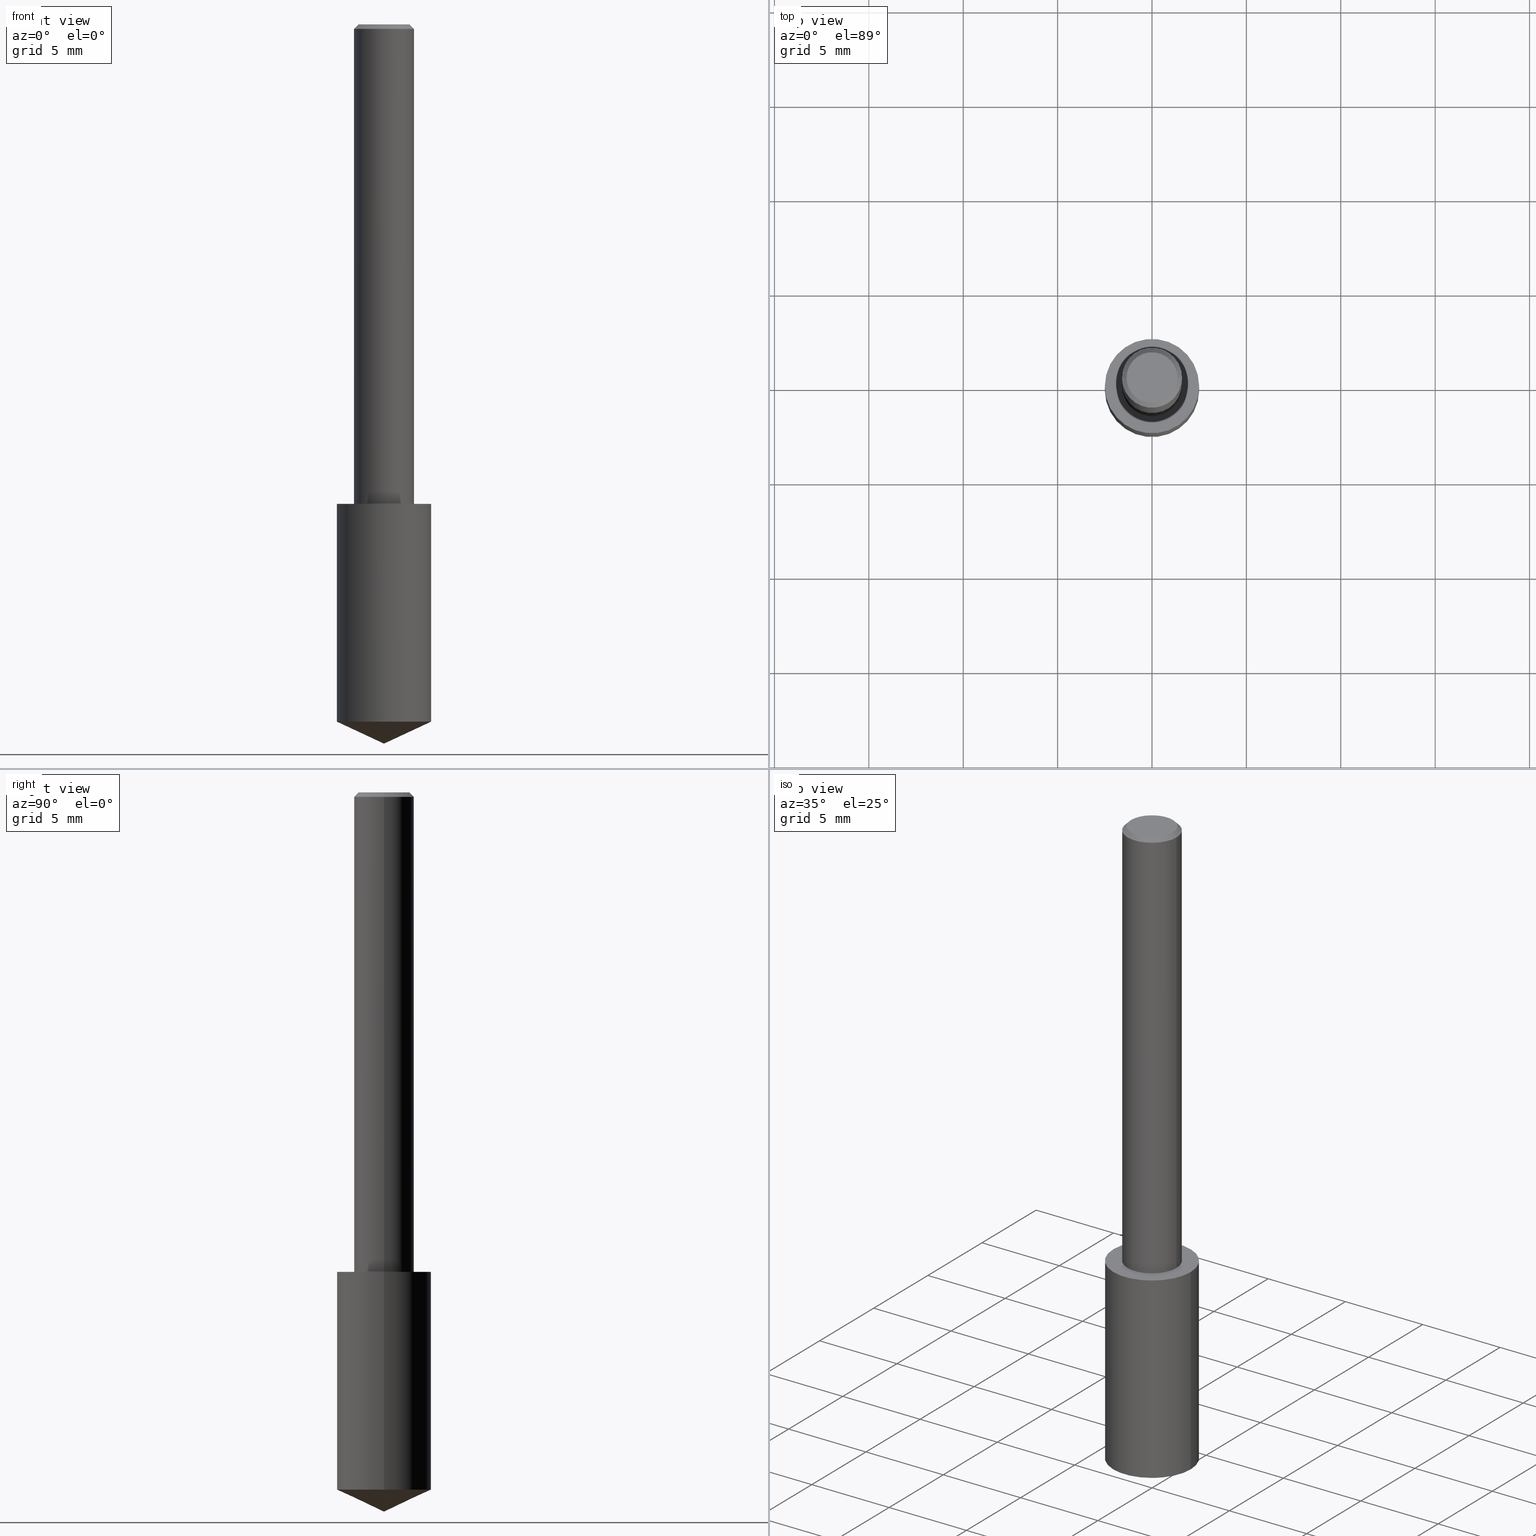
[diagram: canonical four-view strip — front | top / right | iso, engineering-drawing reading convention]
A machine part, canonical four-view strip (front | top / right | iso — engineering-drawing reading convention). The complete STEP part file that produces these views, byte-faithful:
ISO-10303-21;
HEADER;
FILE_DESCRIPTION (( 'STEP AP203' ),
    '1' );
FILE_NAME ('06131.STEP',
    '2024-04-30T18:30:26',
    ( '' ),
    ( '' ),
    'SwSTEP 2.0',
    'SolidWorks 2023',
    '' );
FILE_SCHEMA (( 'CONFIG_CONTROL_DESIGN' ));
ENDSEC;

DATA;
#1 = MANIFOLD_SOLID_BREP ( 'Body-Move/Copy2[2]', #149 ) ;
#2 = ORIENTED_EDGE ( 'NONE', *, *, #160, .F. ) ;
#3 = ORIENTED_EDGE ( 'NONE', *, *, #267, .T. ) ;
#4 = AXIS2_PLACEMENT_3D ( 'NONE', #236, #35, #294 ) ;
#5 = CIRCLE ( 'NONE', #189, 0.05312499999999999861 ) ;
#6 = EDGE_CURVE ( 'NONE', #192, #285, #201, .T. ) ;
#7 = CARTESIAN_POINT ( 'NONE',  ( 3.668203209277704895E-29, -5.237222008264718177E-15, -1.500000000000000222 ) ) ;
#8 = CC_DESIGN_DATE_AND_TIME_ASSIGNMENT ( #37, #214, ( #42 ) ) ;
#9 = LINE ( 'NONE', #208, #48 ) ;
#10 = ORIENTED_EDGE ( 'NONE', *, *, #122, .T. ) ;
#11 = CARTESIAN_POINT ( 'NONE',  ( 0.09840000000000000135, -5.764140054266837223E-15, -1.454115326437548150 ) ) ;
#12 = EDGE_CURVE ( 'NONE', #334, #317, #76, .T. ) ;
#13 = AXIS2_PLACEMENT_3D ( 'NONE', #83, #185, #165 ) ;
#14 = AXIS2_PLACEMENT_3D ( 'NONE', #24, #262, #131 ) ;
#15 = ORIENTED_EDGE ( 'NONE', *, *, #292, .F. ) ;
#16 = ADVANCED_BREP_SHAPE_REPRESENTATION ( '06131', ( #223, #1, #210 ), #184 ) ;
#17 = CARTESIAN_POINT ( 'NONE',  ( -9.261009624683002666E-28, 1.322226732217803884E-13, 37.87007874015748143 ) ) ;
#18 = FACE_OUTER_BOUND ( 'NONE', #167, .T. ) ;
#19 = ORIENTED_EDGE ( 'NONE', *, *, #104, .T. ) ;
#20 = CIRCLE ( 'NONE', #239, 0.06250000000000012490 ) ;
#21 = CONICAL_SURFACE ( 'NONE', #276, 84.42940631927388040, 1.134464013796313786 ) ;
#22 = ORIENTED_EDGE ( 'NONE', *, *, #297, .F. ) ;
#23 = DIMENSIONAL_EXPONENTS ( 1.000000000000000000, 0.000000000000000000, 0.000000000000000000, 0.000000000000000000, 0.000000000000000000, 0.000000000000000000, 0.000000000000000000 ) ;
#24 = CARTESIAN_POINT ( 'NONE',  ( 2.445468806185137438E-29, -3.491481338843146371E-15, -1.000000000000000222 ) ) ;
#25 = ORIENTED_EDGE ( 'NONE', *, *, #12, .T. ) ;
#26 = PLANE ( 'NONE',  #274 ) ;
#27 = LOCAL_TIME ( 14, 30, 26.00000000000000000, #114 ) ;
#28 = EDGE_CURVE ( 'NONE', #251, #31, #121, .T. ) ;
#29 = CIRCLE ( 'NONE', #229, 0.05312499999999999861 ) ;
#30 = CIRCLE ( 'NONE', #206, 0.06250000000000000000 ) ;
#31 = VERTEX_POINT ( 'NONE', #107 ) ;
#32 = CARTESIAN_POINT ( 'NONE',  ( 0.05312499999999999861, -4.129888592719939842E-16, 3.061617000609493422E-21 ) ) ;
#33 = EDGE_CURVE ( 'NONE', #285, #334, #296, .T. ) ;
#34 = FACE_OUTER_BOUND ( 'NONE', #105, .T. ) ;
#35 = DIRECTION ( 'NONE',  ( -2.445468806185136597E-29, 3.491481338843145583E-15, 1.000000000000000000 ) ) ;
#36 = ORIENTED_EDGE ( 'NONE', *, *, #6, .F. ) ;
#37 = DATE_AND_TIME ( #245, #27 ) ;
#38 = EDGE_CURVE ( 'NONE', #220, #192, #266, .T. ) ;
#39 = FACE_OUTER_BOUND ( 'NONE', #146, .T. ) ;
#40 = UNCERTAINTY_MEASURE_WITH_UNIT (LENGTH_MEASURE( 1.000000000000000082E-05 ), #250, 'distance_accuracy_value', 'NONE');
#41 = PERSON_AND_ORGANIZATION ( #310, #196 ) ;
#42 = SECURITY_CLASSIFICATION ( '', '', #148 ) ;
#43 = CARTESIAN_POINT ( 'NONE',  ( 0.09840000000000000135, -4.178604866327475025E-15, -1.000000000000000222 ) ) ;
#44 = EDGE_LOOP ( 'NONE', ( #92, #336, #52 ) ) ;
#45 = EDGE_LOOP ( 'NONE', ( #300, #10, #278, #47 ) ) ;
#46 = APPROVAL_DATE_TIME ( #172, #157 ) ;
#47 = ORIENTED_EDGE ( 'NONE', *, *, #267, .F. ) ;
#48 = VECTOR ( 'NONE', #324, 39.37007874015748143 ) ;
#49 = ORIENTED_EDGE ( 'NONE', *, *, #28, .T. ) ;
#50 = FACE_OUTER_BOUND ( 'NONE', #203, .T. ) ;
#51 = DIRECTION ( 'NONE',  ( -0.9063077870366498257, 7.915267918739016209E-15, 0.4226182617406998299 ) ) ;
#52 = ORIENTED_EDGE ( 'NONE', *, *, #125, .F. ) ;
#53 = CARTESIAN_POINT ( 'NONE',  ( 0.000000000000000000, 0.000000000000000000, 0.000000000000000000 ) ) ;
#54 = AXIS2_PLACEMENT_3D ( 'NONE', #269, #85, #110 ) ;
#55 = CARTESIAN_POINT ( 'NONE',  ( 0.000000000000000000, 0.000000000000000000, 0.000000000000000000 ) ) ;
#56 = DIRECTION ( 'NONE',  ( -2.445468806185136597E-29, 3.491481338843145583E-15, 1.000000000000000000 ) ) ;
#57 = CARTESIAN_POINT ( 'NONE',  ( 3.668203209277704895E-29, -5.237222008264718177E-15, -1.500000000000000222 ) ) ;
#58 = FACE_OUTER_BOUND ( 'NONE', #77, .T. ) ;
#59 = DIRECTION ( 'NONE',  ( 0.000000000000000000, 0.000000000000000000, 1.000000000000000000 ) ) ;
#60 = EDGE_CURVE ( 'NONE', #123, #251, #86, .T. ) ;
#61 = CARTESIAN_POINT ( 'NONE',  ( 3.414797697489490159E-29, -2.103347195721061331E-15, -1.000000000000000222 ) ) ;
#62 = PERSON_AND_ORGANIZATION_ROLE ( 'design_owner' ) ;
#63 = DIRECTION ( 'NONE',  ( 1.000000000000000000, -6.982962677686266711E-15, 4.876176775795935793E-29 ) ) ;
#64 = PERSON_AND_ORGANIZATION ( #310, #196 ) ;
#65 = ADVANCED_FACE ( 'NONE', ( #134 ), #212, .F. ) ;
#66 =( LENGTH_UNIT ( ) NAMED_UNIT ( * ) SI_UNIT ( $, .METRE. ) );
#67 = CC_DESIGN_SECURITY_CLASSIFICATION ( #42, ( #263 ) ) ;
#68 = CALENDAR_DATE ( 2024, 30, 4 ) ;
#69 = CARTESIAN_POINT ( 'NONE',  ( 2.292627005798582375E-31, -3.273263755165473266E-17, -0.009375000000000069042 ) ) ;
#70 = PERSON_AND_ORGANIZATION_ROLE ( 'creator' ) ;
#71 = VECTOR ( 'NONE', #338, 39.37007874015748143 ) ;
#72 = DIRECTION ( 'NONE',  ( -1.000000000000000000, 6.982962677686265922E-15, -4.876176775795935793E-29 ) ) ;
#73 = ORIENTED_EDGE ( 'NONE', *, *, #33, .T. ) ;
#74 = PERSON_AND_ORGANIZATION ( #310, #196 ) ;
#75 = DIRECTION ( 'NONE',  ( -2.445468806185136597E-29, 3.491481338843145583E-15, 1.000000000000000000 ) ) ;
#76 = CIRCLE ( 'NONE', #54, 0.09840000000000000135 ) ;
#77 = EDGE_LOOP ( 'NONE', ( #253, #19, #36 ) ) ;
#78 = LOCAL_TIME ( 14, 30, 26.00000000000000000, #280 ) ;
#79 = DIRECTION ( 'NONE',  ( 1.000000000000000000, -6.982962677686266711E-15, 4.876176628004948512E-29 ) ) ;
#80 = DIRECTION ( 'NONE',  ( -0.7071067811865450192, 2.468850131082230634E-15, -0.7071067811865500152 ) ) ;
#81 = AXIS2_PLACEMENT_3D ( 'NONE', #309, #163, #264 ) ;
#82 = APPROVAL_PERSON_ORGANIZATION ( #117, #94, #91 ) ;
#83 = CARTESIAN_POINT ( 'NONE',  ( 2.445468806185137438E-29, -3.491481338843146371E-15, -1.000000000000000222 ) ) ;
#84 =( NAMED_UNIT ( * ) SI_UNIT ( $, .STERADIAN. ) SOLID_ANGLE_UNIT ( ) );
#85 = DIRECTION ( 'NONE',  ( -2.445468806185136597E-29, 3.491481338843145583E-15, 1.000000000000000000 ) ) ;
#86 = LINE ( 'NONE', #244, #187 ) ;
#87 = DIRECTION ( 'NONE',  ( -2.445468806185136877E-29, 3.491481338843145188E-15, 1.000000000000000000 ) ) ;
#88 = CONICAL_SURFACE ( 'NONE', #112, 84.42940631927388040, 1.134464013796313786 ) ;
#89 = CC_DESIGN_PERSON_AND_ORGANIZATION_ASSIGNMENT ( #41, #176, ( #42 ) ) ;
#90 = ORIENTED_EDGE ( 'NONE', *, *, #60, .F. ) ;
#91 = APPROVAL_ROLE ( '' ) ;
#92 = ORIENTED_EDGE ( 'NONE', *, *, #104, .F. ) ;
#93 = LENGTH_MEASURE_WITH_UNIT ( LENGTH_MEASURE( 0.02539999999999999897 ), #66 );
#94 = APPROVAL ( #299, 'UNSPECIFIED' ) ;
#95 = DIRECTION ( 'NONE',  ( 2.445468806185136597E-29, -3.491481338843145583E-15, -1.000000000000000000 ) ) ;
#96 = LOCAL_TIME ( 14, 30, 26.00000000000000000, #247 ) ;
#97 = APPROVAL_ROLE ( '' ) ;
#98 = APPLICATION_PROTOCOL_DEFINITION ( 'international standard', 'config_control_design', 1994, #164 ) ;
#99 = PERSON_AND_ORGANIZATION_ROLE ( 'creator' ) ;
#100 = CARTESIAN_POINT ( 'NONE',  ( -3.743544432386672853E-50, 5.344789307371238476E-36, 1.530808498934197599E-21 ) ) ;
#101 = APPROVAL_PERSON_ORGANIZATION ( #74, #270, #97 ) ;
#102 = DIRECTION ( 'NONE',  ( -2.438088387897960049E-29, 3.491481338843145188E-15, 1.000000000000000000 ) ) ;
#103 = EDGE_LOOP ( 'NONE', ( #260, #22 ) ) ;
#104 = EDGE_CURVE ( 'NONE', #220, #285, #108, .T. ) ;
#105 = EDGE_LOOP ( 'NONE', ( #242, #153 ) ) ;
#106 = CARTESIAN_POINT ( 'NONE',  ( -0.06250000000000006939, 4.440892098500631092E-16, -3.074334431409319267E-30 ) ) ;
#107 = CARTESIAN_POINT ( 'NONE',  ( -0.06250000000000000000, -1.318017778347336672E-15, -0.009375000000000069042 ) ) ;
#108 = LINE ( 'NONE', #7, #177 ) ;
#109 = EDGE_CURVE ( 'NONE', #116, #123, #29, .T. ) ;
#110 = DIRECTION ( 'NONE',  ( 1.000000000000000000, -6.982962677686266711E-15, 0.000000000000000000 ) ) ;
#111 = CARTESIAN_POINT ( 'NONE',  ( 3.668203209277704895E-29, -5.237222008264718177E-15, -1.500000000000000222 ) ) ;
#112 = AXIS2_PLACEMENT_3D ( 'NONE', #213, #136, #168 ) ;
#113 = EDGE_CURVE ( 'NONE', #151, #272, #261, .T. ) ;
#114 = COORDINATED_UNIVERSAL_TIME_OFFSET ( 5, 0, .BEHIND. ) ;
#115 = CC_DESIGN_PERSON_AND_ORGANIZATION_ASSIGNMENT ( #335, #308, ( #263 ) ) ;
#116 = VERTEX_POINT ( 'NONE', #183 ) ;
#117 = PERSON_AND_ORGANIZATION ( #310, #196 ) ;
#118 = DIRECTION ( 'NONE',  ( -1.000000000000000000, 6.982962677686266711E-15, 0.000000000000000000 ) ) ;
#119 = ORIENTED_EDGE ( 'NONE', *, *, #122, .F. ) ;
#120 = APPROVAL_STATUS ( 'not_yet_approved' ) ;
#121 = CIRCLE ( 'NONE', #282, 0.06250000000000000000 ) ;
#122 = EDGE_CURVE ( 'NONE', #272, #31, #180, .T. ) ;
#123 = VERTEX_POINT ( 'NONE', #32 ) ;
#124 = COORDINATED_UNIVERSAL_TIME_OFFSET ( 5, 0, .BEHIND. ) ;
#125 = EDGE_CURVE ( 'NONE', #285, #192, #339, .T. ) ;
#126 = LOCAL_TIME ( 14, 30, 26.00000000000000000, #173 ) ;
#127 = CARTESIAN_POINT ( 'NONE',  ( 2.445468806185137438E-29, -3.491481338843146371E-15, -1.000000000000000222 ) ) ;
#128 = DATE_AND_TIME ( #314, #78 ) ;
#129 = VECTOR ( 'NONE', #188, 39.37007874015748143 ) ;
#130 = VECTOR ( 'NONE', #332, 39.37007874015748143 ) ;
#131 = DIRECTION ( 'NONE',  ( 1.000000000000000000, -6.982962677686266711E-15, 0.000000000000000000 ) ) ;
#132 = CARTESIAN_POINT ( 'NONE',  ( 2.445468806185137438E-29, -3.491481338843146371E-15, -1.000000000000000222 ) ) ;
#133 = FACE_OUTER_BOUND ( 'NONE', #181, .T. ) ;
#134 = FACE_OUTER_BOUND ( 'NONE', #255, .T. ) ;
#135 = ORIENTED_EDGE ( 'NONE', *, *, #182, .F. ) ;
#136 = DIRECTION ( 'NONE',  ( -2.445468806185136597E-29, 3.491481338843145583E-15, 1.000000000000000000 ) ) ;
#137 = ORIENTED_EDGE ( 'NONE', *, *, #318, .T. ) ;
#138 = CARTESIAN_POINT ( 'NONE',  ( 0.000000000000000000, 0.000000000000000000, 0.000000000000000000 ) ) ;
#139 = SHAPE_DEFINITION_REPRESENTATION ( #204, #16 ) ;
#140 = CIRCLE ( 'NONE', #158, 0.09840000000000000135 ) ;
#141 = CC_DESIGN_PERSON_AND_ORGANIZATION_ASSIGNMENT ( #306, #70, ( #263 ) ) ;
#142 = ORIENTED_EDGE ( 'NONE', *, *, #60, .T. ) ;
#143 = CARTESIAN_POINT ( 'NONE',  ( 2.292627005798582375E-31, -3.273263755165473266E-17, -0.009375000000000069042 ) ) ;
#144 = ORIENTED_EDGE ( 'NONE', *, *, #33, .F. ) ;
#145 = DIRECTION ( 'NONE',  ( 1.000000000000000000, -6.982962677686266711E-15, 0.000000000000000000 ) ) ;
#146 = EDGE_LOOP ( 'NONE', ( #90, #216, #315, #211 ) ) ;
#147 = PRODUCT_DEFINITION ( 'UNKNOWN', '', #263, #248 ) ;
#148 = SECURITY_CLASSIFICATION_LEVEL ( 'unclassified' ) ;
#149 = CLOSED_SHELL ( 'NONE', ( #312, #330, #155, #232, #323, #227 ) ) ;
#150 = VECTOR ( 'NONE', #80, 39.37007874015748143 ) ;
#151 = VERTEX_POINT ( 'NONE', #228 ) ;
#152 = CC_DESIGN_PERSON_AND_ORGANIZATION_ASSIGNMENT ( #331, #99, ( #147 ) ) ;
#153 = ORIENTED_EDGE ( 'NONE', *, *, #182, .T. ) ;
#154 = DIRECTION ( 'NONE',  ( 1.000000000000000000, -6.982962677686266711E-15, 4.876176775795935793E-29 ) ) ;
#155 = ADVANCED_FACE ( 'NONE', ( #265 ), #26, .F. ) ;
#156 = PLANE ( 'NONE',  #230 ) ;
#157 = APPROVAL ( #120, 'UNSPECIFIED' ) ;
#158 = AXIS2_PLACEMENT_3D ( 'NONE', #174, #194, #145 ) ;
#159 = APPLICATION_CONTEXT ( 'configuration controlled 3d designs of mechanical parts and assemblies' ) ;
#160 = EDGE_CURVE ( 'NONE', #116, #31, #311, .T. ) ;
#161 = DIRECTION ( 'NONE',  ( 1.000000000000000000, -6.982962677686264344E-15, 0.000000000000000000 ) ) ;
#162 = APPROVAL_PERSON_ORGANIZATION ( #64, #157, #175 ) ;
#163 = DIRECTION ( 'NONE',  ( -2.445468806185136597E-29, 3.491481338843145583E-15, 1.000000000000000000 ) ) ;
#164 = APPLICATION_CONTEXT ( 'configuration controlled 3d designs of mechanical parts and assemblies' ) ;
#165 = DIRECTION ( 'NONE',  ( 1.000000000000000000, -6.982962677686266711E-15, 0.000000000000000000 ) ) ;
#166 = MECHANICAL_CONTEXT ( 'NONE', #164, 'mechanical' ) ;
#167 = EDGE_LOOP ( 'NONE', ( #135, #142, #49, #2 ) ) ;
#168 = DIRECTION ( 'NONE',  ( 1.000000000000000000, -6.982962677686265922E-15, 0.000000000000000000 ) ) ;
#169 = DIRECTION ( 'NONE',  ( 1.000000000000000000, -6.982962677686266711E-15, 0.000000000000000000 ) ) ;
#170 = CARTESIAN_POINT ( 'NONE',  ( -0.09840000000000000135, -3.585074880824888582E-15, -1.000000000000000222 ) ) ;
#171 = ORIENTED_EDGE ( 'NONE', *, *, #125, .T. ) ;
#172 = DATE_AND_TIME ( #68, #96 ) ;
#173 = COORDINATED_UNIVERSAL_TIME_OFFSET ( 5, 0, .BEHIND. ) ;
#174 = CARTESIAN_POINT ( 'NONE',  ( 2.445468806185136877E-29, -3.491481338843145977E-15, -1.000000000000000222 ) ) ;
#175 = APPROVAL_ROLE ( '' ) ;
#176 = PERSON_AND_ORGANIZATION_ROLE ( 'classification_officer' ) ;
#177 = VECTOR ( 'NONE', #51, 39.37007874015748143 ) ;
#178 = AXIS2_PLACEMENT_3D ( 'NONE', #53, #286, #154 ) ;
#179 = CYLINDRICAL_SURFACE ( 'NONE', #178, 0.06250000000000006939 ) ;
#180 = LINE ( 'NONE', #106, #71 ) ;
#181 = EDGE_LOOP ( 'NONE', ( #119, #291, #3, #15 ) ) ;
#182 = EDGE_CURVE ( 'NONE', #123, #116, #5, .T. ) ;
#183 = CARTESIAN_POINT ( 'NONE',  ( -0.05312499999999999861, 3.873362110279099094E-16, 3.061616995216862494E-21 ) ) ;
#184 =( GEOMETRIC_REPRESENTATION_CONTEXT ( 3 ) GLOBAL_UNCERTAINTY_ASSIGNED_CONTEXT ( ( #40 ) ) GLOBAL_UNIT_ASSIGNED_CONTEXT ( ( #250, #320, #84 ) ) REPRESENTATION_CONTEXT ( 'NONE', 'WORKASPACE' ) );
#185 = DIRECTION ( 'NONE',  ( -2.445468806185136597E-29, 3.491481338843145583E-15, 1.000000000000000000 ) ) ;
#186 = CARTESIAN_POINT ( 'NONE',  ( -0.09840000000000000135, -2.792307286855207483E-15, -1.000000000000000222 ) ) ;
#187 = VECTOR ( 'NONE', #319, 39.37007874015748143 ) ;
#188 = DIRECTION ( 'NONE',  ( 0.9063077870366498257, -4.853149677051377212E-15, 0.4226182617406998299 ) ) ;
#189 = AXIS2_PLACEMENT_3D ( 'NONE', #237, #290, #207 ) ;
#190 = APPROVAL_DATE_TIME ( #327, #94 ) ;
#191 = DIRECTION ( 'NONE',  ( -2.445468806185136597E-29, 3.491481338843145583E-15, 1.000000000000000000 ) ) ;
#192 = VERTEX_POINT ( 'NONE', #11 ) ;
#193 = DATE_TIME_ROLE ( 'creation_date' ) ;
#194 = DIRECTION ( 'NONE',  ( -2.445468806185136597E-29, 3.491481338843145583E-15, 1.000000000000000000 ) ) ;
#195 = ORIENTED_EDGE ( 'NONE', *, *, #318, .F. ) ;
#196 = ORGANIZATION ( 'UNSPECIFIED', 'UNSPECIFIED', '' ) ;
#197 = DIRECTION ( 'NONE',  ( -2.445468806185136597E-29, 3.491481338843145583E-15, 1.000000000000000000 ) ) ;
#198 = APPROVAL_DATE_TIME ( #128, #270 ) ;
#199 = DATE_AND_TIME ( #281, #289 ) ;
#200 = DIRECTION ( 'NONE',  ( 2.438088387897960049E-29, -3.491481338843145188E-15, -1.000000000000000000 ) ) ;
#201 = CIRCLE ( 'NONE', #4, 0.09840000000000000135 ) ;
#202 = DIRECTION ( 'NONE',  ( 1.000000000000000000, -6.982962677686265922E-15, 4.876176775795935793E-29 ) ) ;
#203 = EDGE_LOOP ( 'NONE', ( #144, #171, #313, #304 ) ) ;
#204 = PRODUCT_DEFINITION_SHAPE ( 'NONE', 'NONE',  #147 ) ;
#205 = CC_DESIGN_APPROVAL ( #270, ( #263 ) ) ;
#206 = AXIS2_PLACEMENT_3D ( 'NONE', #307, #333, #169 ) ;
#207 = DIRECTION ( 'NONE',  ( 1.000000000000000000, -6.982962677686266711E-15, 4.876176628004948512E-29 ) ) ;
#208 = CARTESIAN_POINT ( 'NONE',  ( 0.06250000000000006939, -4.364351673553921624E-16, 3.047610484872463374E-30 ) ) ;
#209 = CARTESIAN_POINT ( 'NONE',  ( 2.292627005798582375E-31, -3.273263755165473266E-17, -0.009375000000000069042 ) ) ;
#210 = AXIS2_PLACEMENT_3D ( 'NONE', #55, #59, #243 ) ;
#211 = ORIENTED_EDGE ( 'NONE', *, *, #292, .T. ) ;
#212 = PLANE ( 'NONE',  #325 ) ;
#213 = CARTESIAN_POINT ( 'NONE',  ( -9.261009624683002666E-28, 1.322226732217803884E-13, 37.87007874015748143 ) ) ;
#214 = DATE_TIME_ROLE ( 'classification_date' ) ;
#215 = ORIENTED_EDGE ( 'NONE', *, *, #337, .F. ) ;
#216 = ORIENTED_EDGE ( 'NONE', *, *, #109, .F. ) ;
#217 = AXIS2_PLACEMENT_3D ( 'NONE', #127, #75, #161 ) ;
#218 = CALENDAR_DATE ( 2024, 30, 4 ) ;
#219 = DIRECTION ( 'NONE',  ( 2.445468806185136597E-29, -3.491481338843145583E-15, -1.000000000000000000 ) ) ;
#220 = VERTEX_POINT ( 'NONE', #111 ) ;
#221 = DIRECTION ( 'NONE',  ( -2.445468806185136597E-29, 3.491481338843145583E-15, 1.000000000000000000 ) ) ;
#222 = ADVANCED_FACE ( 'NONE', ( #287 ), #238, .T. ) ;
#223 = MANIFOLD_SOLID_BREP ( 'Body-Move/Copy2[1]', #226 ) ;
#224 = DIRECTION ( 'NONE',  ( 1.000000000000000000, -6.982962677686265922E-15, 0.000000000000000000 ) ) ;
#225 = PRODUCT_RELATED_PRODUCT_CATEGORY ( 'detail', '', ( #235 ) ) ;
#226 = CLOSED_SHELL ( 'NONE', ( #222, #273, #288, #241, #65 ) ) ;
#227 = ADVANCED_FACE ( 'NONE', ( #34 ), #156, .F. ) ;
#228 = CARTESIAN_POINT ( 'NONE',  ( 0.06250000000000012490, -3.927916506198539224E-15, -1.000000000000000222 ) ) ;
#229 = AXIS2_PLACEMENT_3D ( 'NONE', #321, #56, #79 ) ;
#230 = AXIS2_PLACEMENT_3D ( 'NONE', #100, #200, #295 ) ;
#231 = CARTESIAN_POINT ( 'NONE',  ( -0.06250000000000000000, 4.037025298037369491E-16, -0.009375000000000069042 ) ) ;
#232 = ADVANCED_FACE ( 'NONE', ( #133 ), #179, .T. ) ;
#233 = CC_DESIGN_DATE_AND_TIME_ASSIGNMENT ( #199, #193, ( #147 ) ) ;
#234 = CARTESIAN_POINT ( 'NONE',  ( 0.06250000000000000000, -4.691678049070464390E-16, -0.009375000000000069042 ) ) ;
#235 = PRODUCT ( '06131', '06131', '', ( #166 ) ) ;
#236 = CARTESIAN_POINT ( 'NONE',  ( 3.555993671398741299E-29, -5.077016526782508174E-15, -1.454115326437548150 ) ) ;
#237 = CARTESIAN_POINT ( 'NONE',  ( -7.487088864773345706E-50, 1.068957861474247695E-35, 3.061616997868395197E-21 ) ) ;
#238 = CYLINDRICAL_SURFACE ( 'NONE', #13, 0.09840000000000000135 ) ;
#239 = AXIS2_PLACEMENT_3D ( 'NONE', #271, #197, #302 ) ;
#240 = DIRECTION ( 'NONE',  ( 1.000000000000000000, -6.982962677686266711E-15, 0.000000000000000000 ) ) ;
#241 = ADVANCED_FACE ( 'NONE', ( #50 ), #258, .T. ) ;
#242 = ORIENTED_EDGE ( 'NONE', *, *, #109, .T. ) ;
#243 = DIRECTION ( 'NONE',  ( 1.000000000000000000, 0.000000000000000000, 0.000000000000000000 ) ) ;
#244 = CARTESIAN_POINT ( 'NONE',  ( 0.06250000000000000000, -4.615137624123754923E-16, -0.009375000000000069042 ) ) ;
#245 = CALENDAR_DATE ( 2024, 30, 4 ) ;
#246 = FACE_OUTER_BOUND ( 'NONE', #45, .T. ) ;
#247 = COORDINATED_UNIVERSAL_TIME_OFFSET ( 5, 0, .BEHIND. ) ;
#248 = DESIGN_CONTEXT ( 'detailed design', #159, 'design' ) ;
#249 = AXIS2_PLACEMENT_3D ( 'NONE', #143, #95, #329 ) ;
#250 =( CONVERSION_BASED_UNIT ( 'INCH', #93 ) LENGTH_UNIT ( ) NAMED_UNIT ( #23 ) );
#251 = VERTEX_POINT ( 'NONE', #234 ) ;
#252 = EDGE_LOOP ( 'NONE', ( #257, #73, #195, #215 ) ) ;
#253 = ORIENTED_EDGE ( 'NONE', *, *, #38, .F. ) ;
#254 = CONICAL_SURFACE ( 'NONE', #249, 0.06250000000000000000, 0.7853981633974447263 ) ;
#255 = EDGE_LOOP ( 'NONE', ( #137, #25 ) ) ;
#256 = CARTESIAN_POINT ( 'NONE',  ( -0.09840000000000000135, -4.377842474794570075E-15, -1.454115326437548150 ) ) ;
#257 = ORIENTED_EDGE ( 'NONE', *, *, #6, .T. ) ;
#258 = CYLINDRICAL_SURFACE ( 'NONE', #14, 0.09840000000000000135 ) ;
#259 = CC_DESIGN_PERSON_AND_ORGANIZATION_ASSIGNMENT ( #301, #62, ( #235 ) ) ;
#260 = ORIENTED_EDGE ( 'NONE', *, *, #113, .F. ) ;
#261 = CIRCLE ( 'NONE', #217, 0.06250000000000012490 ) ;
#262 = DIRECTION ( 'NONE',  ( -2.445468806185136597E-29, 3.491481338843145583E-15, 1.000000000000000000 ) ) ;
#263 = PRODUCT_DEFINITION_FORMATION_WITH_SPECIFIED_SOURCE ( 'ANY', '', #235, .NOT_KNOWN. ) ;
#264 = DIRECTION ( 'NONE',  ( 1.000000000000000000, -6.982962677686271444E-15, 0.000000000000000000 ) ) ;
#265 = FACE_OUTER_BOUND ( 'NONE', #103, .T. ) ;
#266 = LINE ( 'NONE', #57, #129 ) ;
#267 = EDGE_CURVE ( 'NONE', #151, #251, #9, .T. ) ;
#268 = CC_DESIGN_APPROVAL ( #94, ( #42 ) ) ;
#269 = CARTESIAN_POINT ( 'NONE',  ( 2.445468806185136877E-29, -3.491481338843145977E-15, -1.000000000000000222 ) ) ;
#270 = APPROVAL ( #284, 'UNSPECIFIED' ) ;
#271 = CARTESIAN_POINT ( 'NONE',  ( 2.445468806185137438E-29, -3.491481338843146371E-15, -1.000000000000000222 ) ) ;
#272 = VERTEX_POINT ( 'NONE', #328 ) ;
#273 = ADVANCED_FACE ( 'NONE', ( #58 ), #88, .T. ) ;
#274 = AXIS2_PLACEMENT_3D ( 'NONE', #132, #102, #202 ) ;
#275 = FACE_OUTER_BOUND ( 'NONE', #44, .T. ) ;
#276 = AXIS2_PLACEMENT_3D ( 'NONE', #17, #221, #224 ) ;
#277 = LINE ( 'NONE', #303, #130 ) ;
#278 = ORIENTED_EDGE ( 'NONE', *, *, #28, .F. ) ;
#279 = CYLINDRICAL_SURFACE ( 'NONE', #340, 0.06250000000000006939 ) ;
#280 = COORDINATED_UNIVERSAL_TIME_OFFSET ( 5, 0, .BEHIND. ) ;
#281 = CALENDAR_DATE ( 2024, 30, 4 ) ;
#282 = AXIS2_PLACEMENT_3D ( 'NONE', #209, #298, #240 ) ;
#283 = AXIS2_PLACEMENT_3D ( 'NONE', #69, #219, #118 ) ;
#284 = APPROVAL_STATUS ( 'not_yet_approved' ) ;
#285 = VERTEX_POINT ( 'NONE', #256 ) ;
#286 = DIRECTION ( 'NONE',  ( -2.445468806185136597E-29, 3.491481338843145583E-15, 1.000000000000000000 ) ) ;
#287 = FACE_OUTER_BOUND ( 'NONE', #252, .T. ) ;
#288 = ADVANCED_FACE ( 'NONE', ( #275 ), #21, .T. ) ;
#289 = LOCAL_TIME ( 14, 30, 26.00000000000000000, #124 ) ;
#290 = DIRECTION ( 'NONE',  ( -2.445468806185136597E-29, 3.491481338843145583E-15, 1.000000000000000000 ) ) ;
#291 = ORIENTED_EDGE ( 'NONE', *, *, #297, .T. ) ;
#292 = EDGE_CURVE ( 'NONE', #31, #251, #30, .T. ) ;
#293 = DIRECTION ( 'NONE',  ( 2.438088387897960049E-29, -3.491481338843145188E-15, -1.000000000000000000 ) ) ;
#294 = DIRECTION ( 'NONE',  ( 1.000000000000000000, -6.982962677686271444E-15, 0.000000000000000000 ) ) ;
#295 = DIRECTION ( 'NONE',  ( -1.000000000000000000, 6.982962677686265922E-15, -4.876176775795935793E-29 ) ) ;
#296 = LINE ( 'NONE', #186, #316 ) ;
#297 = EDGE_CURVE ( 'NONE', #272, #151, #20, .T. ) ;
#298 = DIRECTION ( 'NONE',  ( -2.445468806185136597E-29, 3.491481338843145583E-15, 1.000000000000000000 ) ) ;
#299 = APPROVAL_STATUS ( 'not_yet_approved' ) ;
#300 = ORIENTED_EDGE ( 'NONE', *, *, #113, .T. ) ;
#301 = PERSON_AND_ORGANIZATION ( #310, #196 ) ;
#302 = DIRECTION ( 'NONE',  ( 1.000000000000000000, -6.982962677686264344E-15, 0.000000000000000000 ) ) ;
#303 = CARTESIAN_POINT ( 'NONE',  ( 0.09840000000000000135, -4.178604866327475025E-15, -1.000000000000000222 ) ) ;
#304 = ORIENTED_EDGE ( 'NONE', *, *, #12, .F. ) ;
#305 = APPLICATION_PROTOCOL_DEFINITION ( 'international standard', 'config_control_design', 1994, #159 ) ;
#306 = PERSON_AND_ORGANIZATION ( #310, #196 ) ;
#307 = CARTESIAN_POINT ( 'NONE',  ( 2.292627005798582375E-31, -3.273263755165473266E-17, -0.009375000000000069042 ) ) ;
#308 = PERSON_AND_ORGANIZATION_ROLE ( 'design_supplier' ) ;
#309 = CARTESIAN_POINT ( 'NONE',  ( 3.555993671398741299E-29, -5.077016526782508174E-15, -1.454115326437548150 ) ) ;
#310 = PERSON ( 'UNSPECIFIED', 'UNSPECIFIED', 'UNSPECIFIED', ('UNSPECIFIED'), ('UNSPECIFIED'), ('UNSPECIFIED') ) ;
#311 = LINE ( 'NONE', #231, #150 ) ;
#312 = ADVANCED_FACE ( 'NONE', ( #18 ), #254, .T. ) ;
#313 = ORIENTED_EDGE ( 'NONE', *, *, #337, .T. ) ;
#314 = CALENDAR_DATE ( 2024, 30, 4 ) ;
#315 = ORIENTED_EDGE ( 'NONE', *, *, #160, .T. ) ;
#316 = VECTOR ( 'NONE', #87, 39.37007874015748143 ) ;
#317 = VERTEX_POINT ( 'NONE', #43 ) ;
#318 = EDGE_CURVE ( 'NONE', #317, #334, #140, .T. ) ;
#319 = DIRECTION ( 'NONE',  ( 0.7071067811865450192, -7.319954787623246579E-15, -0.7071067811865500152 ) ) ;
#320 =( NAMED_UNIT ( * ) PLANE_ANGLE_UNIT ( ) SI_UNIT ( $, .RADIAN. ) );
#321 = CARTESIAN_POINT ( 'NONE',  ( -7.487088864773345706E-50, 1.068957861474247695E-35, 3.061616997868395197E-21 ) ) ;
#322 = CONICAL_SURFACE ( 'NONE', #283, 0.06250000000000000000, 0.7853981633974447263 ) ;
#323 = ADVANCED_FACE ( 'NONE', ( #39 ), #322, .T. ) ;
#324 = DIRECTION ( 'NONE',  ( -2.445468806185136877E-29, 3.491481338843145188E-15, 1.000000000000000000 ) ) ;
#325 = AXIS2_PLACEMENT_3D ( 'NONE', #61, #293, #72 ) ;
#326 = CC_DESIGN_APPROVAL ( #157, ( #147 ) ) ;
#327 = DATE_AND_TIME ( #218, #126 ) ;
#328 = CARTESIAN_POINT ( 'NONE',  ( -0.06250000000000012490, -1.318017778347335489E-15, -1.000000000000000222 ) ) ;
#329 = DIRECTION ( 'NONE',  ( -1.000000000000000000, 6.982962677686266711E-15, 0.000000000000000000 ) ) ;
#330 = ADVANCED_FACE ( 'NONE', ( #246 ), #279, .T. ) ;
#331 = PERSON_AND_ORGANIZATION ( #310, #196 ) ;
#332 = DIRECTION ( 'NONE',  ( -2.445468806185136877E-29, 3.491481338843145188E-15, 1.000000000000000000 ) ) ;
#333 = DIRECTION ( 'NONE',  ( -2.445468806185136597E-29, 3.491481338843145583E-15, 1.000000000000000000 ) ) ;
#334 = VERTEX_POINT ( 'NONE', #170 ) ;
#335 = PERSON_AND_ORGANIZATION ( #310, #196 ) ;
#336 = ORIENTED_EDGE ( 'NONE', *, *, #38, .T. ) ;
#337 = EDGE_CURVE ( 'NONE', #192, #317, #277, .T. ) ;
#338 = DIRECTION ( 'NONE',  ( -2.445468806185136877E-29, 3.491481338843145188E-15, 1.000000000000000000 ) ) ;
#339 = CIRCLE ( 'NONE', #81, 0.09840000000000000135 ) ;
#340 = AXIS2_PLACEMENT_3D ( 'NONE', #138, #191, #63 ) ;
ENDSEC;
END-ISO-10303-21;
